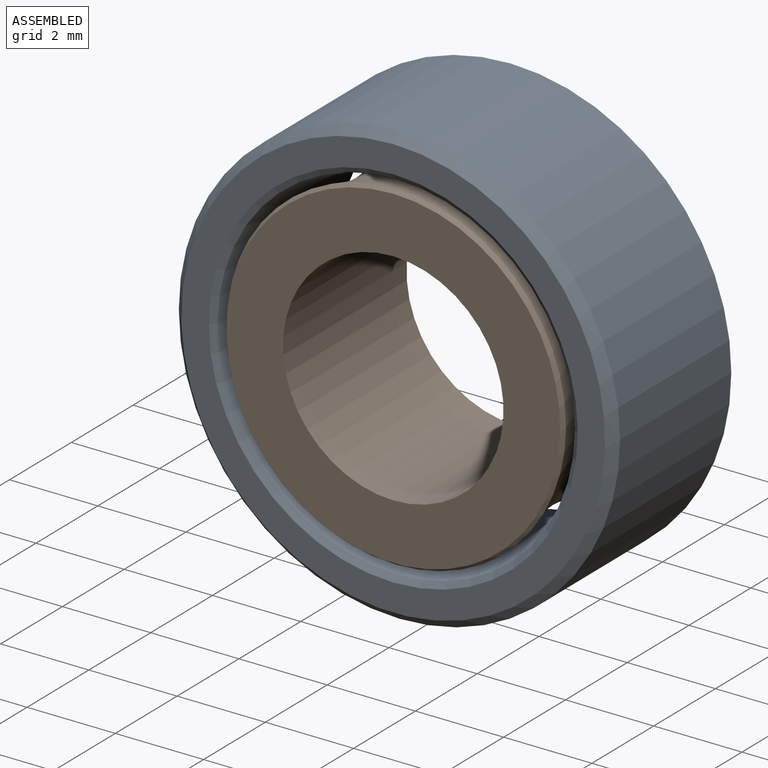
[diagram: assembled view]
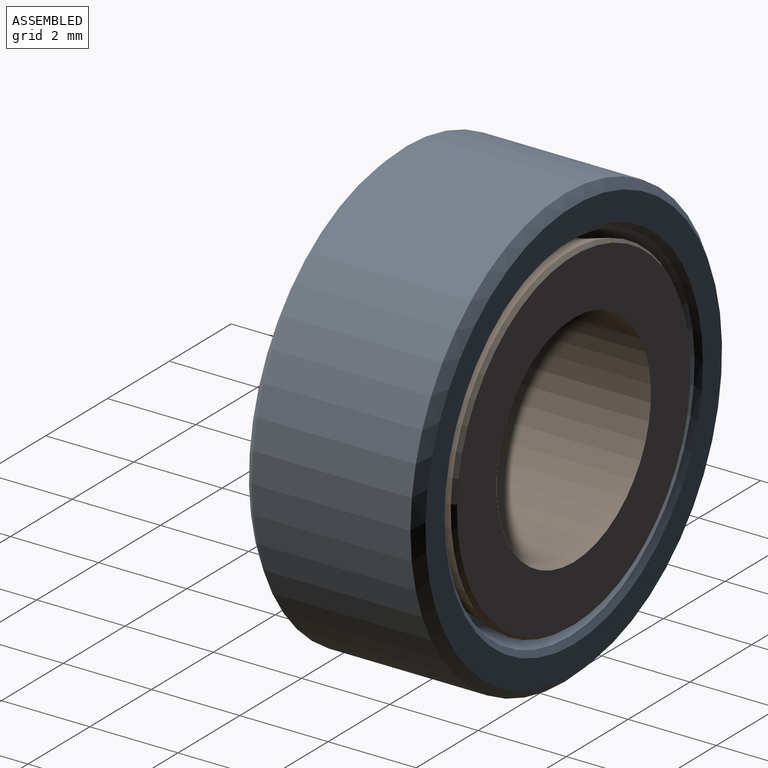
[diagram: assembled view, second angle]
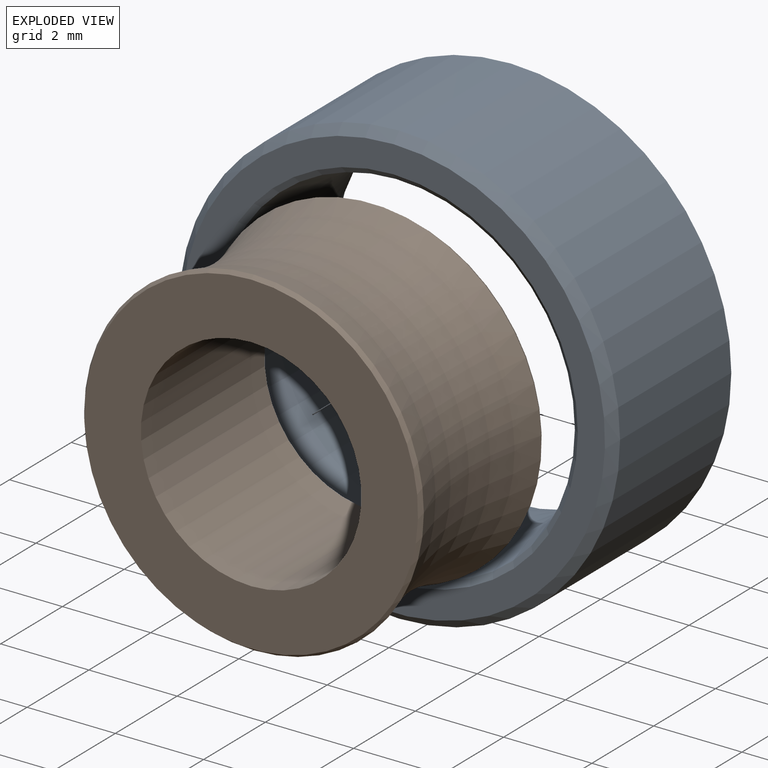
[diagram: exploded view]
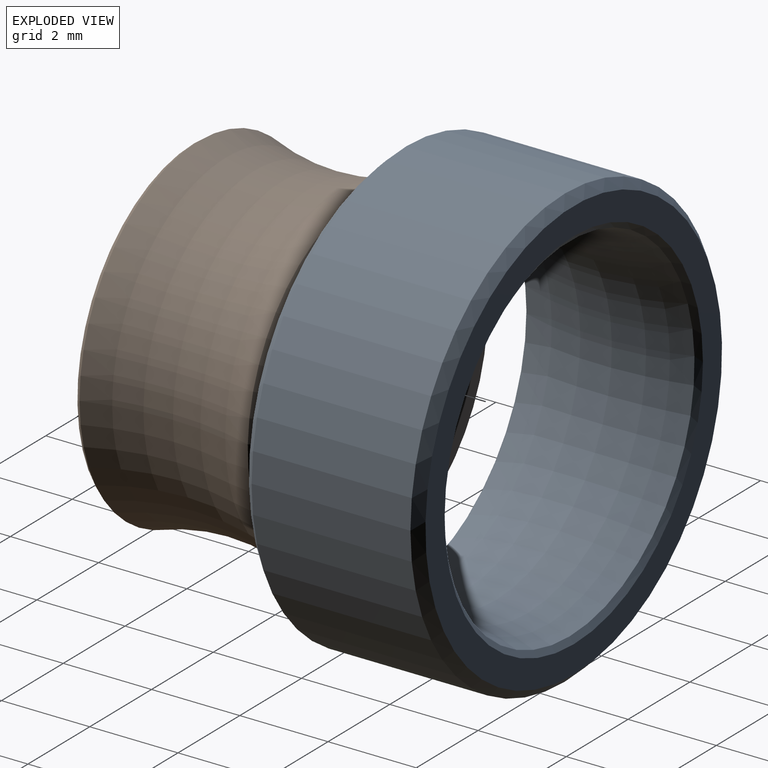
[diagram: exploded view, second angle]
ASSEMBLY  parts=2 mates=2
PART A: 8 faces, bbox 11.9x8.5x11.9 mm
  f0: plane 9.6x9.6mm, normal (0,-1,0), area 17.4mm2, adj f4,f7
  f1: torus R=9.74mm, axis (0,-1,0), area 93.5mm2, adj f4,f5
  f2: plane 9.6x9.6mm, normal (0,1,0), area 17.4mm2, adj f5,f6
  f3: cylinder r=5mm len=10mm, axis (0,-1,0), area 113.1mm2, adj f6,f7
  f4: cone r=4.05mm half-angle=54.2deg, axis (0,-1,0), area 4.3mm2, adj f0,f1
  f5: cone r=4.18mm half-angle=54.2deg, axis (0,1,0), area 4.3mm2, adj f1,f2
  f6: cone r=5mm half-angle=45deg, axis (0,-1,0), area 8.7mm2, adj f2,f3
  f7: cone r=4.8mm half-angle=45deg, axis (0,1,0), area 8.7mm2, adj f0,f3
PART B: 6 faces, bbox 11.4x8.5x11.4 mm
  f0: torus R=9.54mm, axis (0,-1,0), area 88.8mm2, adj f4,f5
  f1: plane 7.56x7.56mm, normal (0,-1,0), area 25.3mm2, adj f2,f4
  f2: cylinder r=2.5mm len=5mm, axis (0,-1,0), area 62.8mm2, adj f1,f3
  f3: plane 7.56x7.56mm, normal (0,1,0), area 25.3mm2, adj f2,f5
  f4: cone r=3.78mm half-angle=35.7deg, axis (0,1,0), area 2.8mm2, adj f0,f1
  f5: cone r=3.85mm half-angle=35.7deg, axis (0,-1,0), area 2.8mm2, adj f0,f3
PLACE A t=(1.7,0.56,-5.56)mm
PLACE B t=(1.7,0.56,-5.56)mm
MATE revolute B.f0 <-> A.f1  axis (0,1,0) through (1.7,4.56,-5.56)mm
MATE revolute A.f1 <-> B.f0  axis (0,1,0) through (1.7,4.56,-5.56)mm
